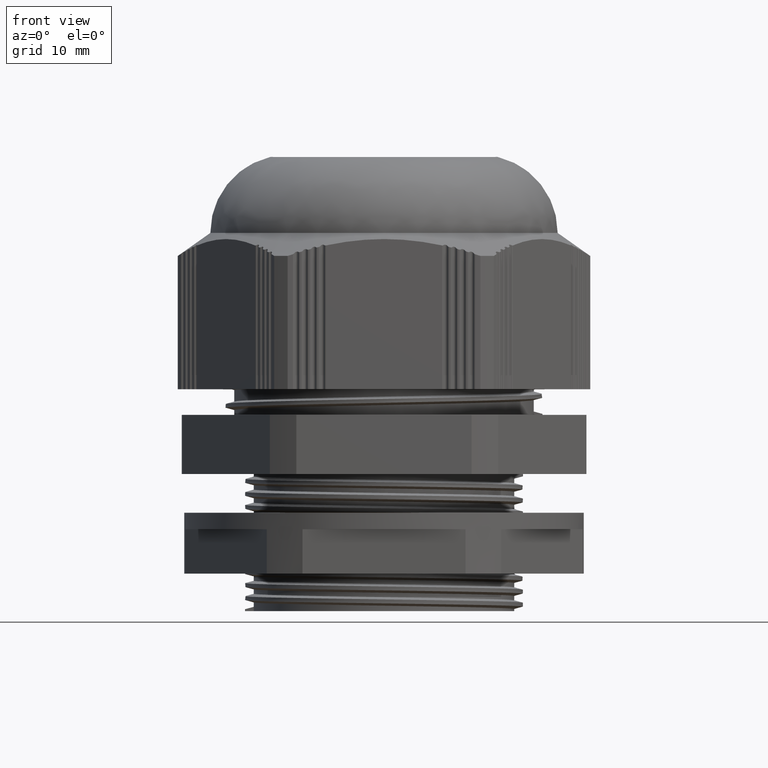
[diagram: clean part render]
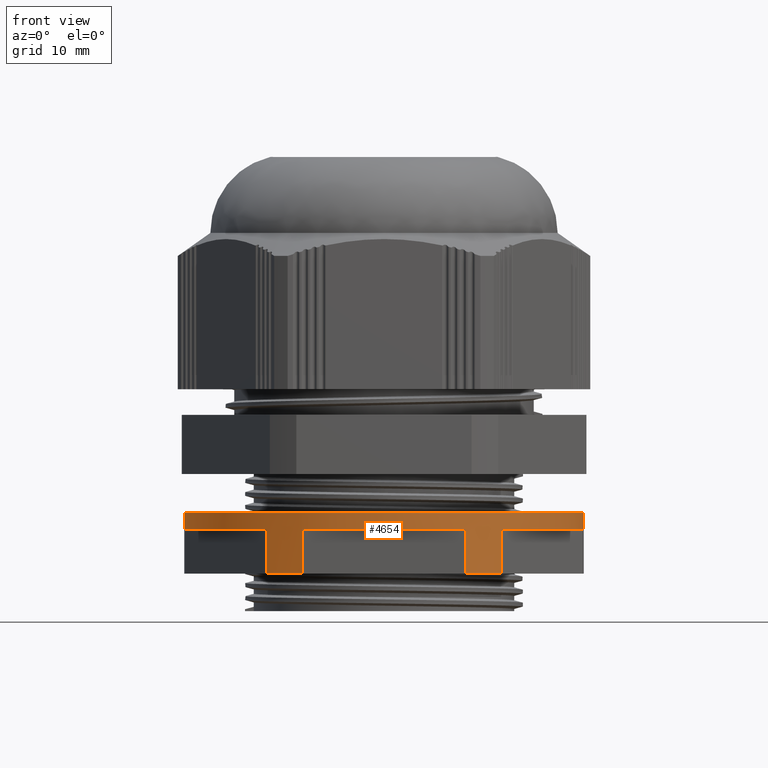
[diagram: same view with one face highlighted and labeled with its STEP entity id]
A machine part, front view. The second image highlights one B-rep face of the part: STEP entity #4654.
In plain terms, the highlighted cylindrical surface (partial cylindrical patch) has radius 23 mm, axis along (0, 0, 1).
Its self-contained STEP definition (entity closure, byte-faithful):
#64 = ORIENTED_EDGE ( 'NONE', *, *, #4732, .F. ) ;
#68 = ORIENTED_EDGE ( 'NONE', *, *, #356, .T. ) ;
#70 = ORIENTED_EDGE ( 'NONE', *, *, #321, .T. ) ;
#108 = ORIENTED_EDGE ( 'NONE', *, *, #4820, .T. ) ;
#136 = ORIENTED_EDGE ( 'NONE', *, *, #4811, .F. ) ;
#156 = VERTEX_POINT ( 'NONE', #4265 ) ;
#165 = VERTEX_POINT ( 'NONE', #4330 ) ;
#321 = EDGE_CURVE ( 'NONE', #1519, #1184, #2441, .T. ) ;
#325 = VERTEX_POINT ( 'NONE', #10208 ) ;
#335 = EDGE_CURVE ( 'NONE', #165, #1202, #2428, .T. ) ;
#356 = EDGE_CURVE ( 'NONE', #1174, #1519, #3148, .T. ) ;
#405 = VERTEX_POINT ( 'NONE', #3317 ) ;
#509 = ORIENTED_EDGE ( 'NONE', *, *, #4775, .T. ) ;
#516 = ORIENTED_EDGE ( 'NONE', *, *, #4782, .T. ) ;
#518 = ORIENTED_EDGE ( 'NONE', *, *, #4798, .T. ) ;
#536 = ORIENTED_EDGE ( 'NONE', *, *, #335, .F. ) ;
#539 = ORIENTED_EDGE ( 'NONE', *, *, #4799, .T. ) ;
#540 = ORIENTED_EDGE ( 'NONE', *, *, #571, .T. ) ;
#571 = EDGE_CURVE ( 'NONE', #165, #325, #3685, .T. ) ;
#614 = EDGE_CURVE ( 'NONE', #156, #405, #3909, .T. ) ;
#855 = EDGE_LOOP ( 'NONE', ( #10157, #10204, #10171, #10212, #10225, #64, #68, #70, #108, #136, #516, #539, #509, #536, #540, #518 ) ) ;
#1174 = VERTEX_POINT ( 'NONE', #6720 ) ;
#1175 = VERTEX_POINT ( 'NONE', #6744 ) ;
#1184 = VERTEX_POINT ( 'NONE', #6705 ) ;
#1185 = VERTEX_POINT ( 'NONE', #6742 ) ;
#1202 = VERTEX_POINT ( 'NONE', #6733 ) ;
#1207 = VERTEX_POINT ( 'NONE', #6748 ) ;
#1209 = VERTEX_POINT ( 'NONE', #6736 ) ;
#1215 = VERTEX_POINT ( 'NONE', #6727 ) ;
#1231 = VERTEX_POINT ( 'NONE', #6827 ) ;
#1519 = VERTEX_POINT ( 'NONE', #6990 ) ;
#1520 = VERTEX_POINT ( 'NONE', #6981 ) ;
#1529 = VERTEX_POINT ( 'NONE', #7018 ) ;
#2428 = CIRCLE ( 'NONE', #2455, 23.00000000000000000 ) ;
#2433 = VECTOR ( 'NONE', #3154, 1000.000000000000000 ) ;
#2441 = CIRCLE ( 'NONE', #2454, 23.00000000000000000 ) ;
#2454 = AXIS2_PLACEMENT_3D ( 'NONE', #4254, #4256, #4262 ) ;
#2455 = AXIS2_PLACEMENT_3D ( 'NONE', #3138, #3163, #3166 ) ;
#2531 = VECTOR ( 'NONE', #3728, 1000.000000000000000 ) ;
#2606 = VECTOR ( 'NONE', #3917, 1000.000000000000000 ) ;
#2771 = AXIS2_PLACEMENT_3D ( 'NONE', #9079, #9069, #9101 ) ;
#2835 = AXIS2_PLACEMENT_3D ( 'NONE', #10962, #10956, #10985 ) ;
#2862 = VECTOR ( 'NONE', #11027, 1000.000000000000000 ) ;
#2869 = CIRCLE ( 'NONE', #2835, 23.00000000000000000 ) ;
#2887 = AXIS2_PLACEMENT_3D ( 'NONE', #11857, #11849, #11835 ) ;
#2894 = VECTOR ( 'NONE', #11460, 1000.000000000000000 ) ;
#2896 = CIRCLE ( 'NONE', #2918, 23.00000000000000000 ) ;
#2897 = AXIS2_PLACEMENT_3D ( 'NONE', #11820, #11833, #11852 ) ;
#2901 = CIRCLE ( 'NONE', #2902, 23.00000000000000000 ) ;
#2902 = AXIS2_PLACEMENT_3D ( 'NONE', #11892, #11894, #11888 ) ;
#2905 = VECTOR ( 'NONE', #11429, 1000.000000000000000 ) ;
#2915 = VECTOR ( 'NONE', #11443, 1000.000000000000000 ) ;
#2918 = AXIS2_PLACEMENT_3D ( 'NONE', #11865, #11866, #11883 ) ;
#2927 = CIRCLE ( 'NONE', #2897, 23.00000000000000000 ) ;
#2936 = CIRCLE ( 'NONE', #2887, 23.00000000000000000 ) ;
#2944 = AXIS2_PLACEMENT_3D ( 'NONE', #12024, #12039, #12008 ) ;
#2947 = CIRCLE ( 'NONE', #2944, 23.00000000000000000 ) ;
#2976 = VECTOR ( 'NONE', #12036, 1000.000000000000000 ) ;
#3138 = CARTESIAN_POINT ( 'NONE',  ( 0.0000000000000000000, 0.0000000000000000000, 4.324286988929948400 ) ) ;
#3148 = LINE ( 'NONE', #3159, #2433 ) ;
#3154 = DIRECTION ( 'NONE',  ( 0.0000000000000000000, 0.0000000000000000000, 1.000000000000000000 ) ) ;
#3159 = CARTESIAN_POINT ( 'NONE',  ( -9.380831519646829300, -21.00000000000001100, 4.824286988929948400 ) ) ;
#3163 = DIRECTION ( 'NONE',  ( 0.0000000000000000000, 0.0000000000000000000, -1.000000000000000000 ) ) ;
#3166 = DIRECTION ( 'NONE',  ( -1.000000000000000000, 0.0000000000000000000, 0.0000000000000000000 ) ) ;
#3317 = CARTESIAN_POINT ( 'NONE',  ( -23.00000000000000000, 2.816687638038912400E-015, 11.32428698892995400 ) ) ;
#3685 = LINE ( 'NONE', #3691, #2531 ) ;
#3691 = CARTESIAN_POINT ( 'NONE',  ( 23.00000000000000000, 0.0000000000000000000, 4.824286988929948400 ) ) ;
#3728 = DIRECTION ( 'NONE',  ( 0.0000000000000000000, 0.0000000000000000000, 1.000000000000000000 ) ) ;
#3902 = CARTESIAN_POINT ( 'NONE',  ( -23.00000000000000000, 2.816687638038912400E-015, 4.824286988929948400 ) ) ;
#3909 = LINE ( 'NONE', #3902, #2606 ) ;
#3917 = DIRECTION ( 'NONE',  ( 0.0000000000000000000, 0.0000000000000000000, 1.000000000000000000 ) ) ;
#4254 = CARTESIAN_POINT ( 'NONE',  ( 0.0000000000000000000, 0.0000000000000000000, 9.424286988929948100 ) ) ;
#4256 = DIRECTION ( 'NONE',  ( 0.0000000000000000000, 0.0000000000000000000, 1.000000000000000000 ) ) ;
#4262 = DIRECTION ( 'NONE',  ( 1.000000000000000000, 0.0000000000000000000, 0.0000000000000000000 ) ) ;
#4265 = CARTESIAN_POINT ( 'NONE',  ( -23.00000000000000000, 2.816687638038912400E-015, 4.324286988929948400 ) ) ;
#4330 = CARTESIAN_POINT ( 'NONE',  ( 23.00000000000000000, 0.0000000000000000000, 4.324286988929948400 ) ) ;
#4654 = ADVANCED_FACE ( 'NONE', ( #9097 ), #9089, .T. ) ;
#4732 = EDGE_CURVE ( 'NONE', #1174, #1207, #2869, .T. ) ;
#4737 = EDGE_CURVE ( 'NONE', #1175, #1185, #11035, .T. ) ;
#4775 = EDGE_CURVE ( 'NONE', #1215, #1202, #11407, .T. ) ;
#4778 = EDGE_CURVE ( 'NONE', #1520, #1207, #11422, .T. ) ;
#4782 = EDGE_CURVE ( 'NONE', #1231, #1529, #11463, .T. ) ;
#4798 = EDGE_CURVE ( 'NONE', #325, #405, #2927, .T. ) ;
#4799 = EDGE_CURVE ( 'NONE', #1529, #1215, #2936, .T. ) ;
#4811 = EDGE_CURVE ( 'NONE', #1231, #1209, #2901, .T. ) ;
#4814 = EDGE_CURVE ( 'NONE', #1185, #1520, #2896, .T. ) ;
#4820 = EDGE_CURVE ( 'NONE', #1184, #1209, #12056, .T. ) ;
#4826 = EDGE_CURVE ( 'NONE', #1175, #156, #2947, .T. ) ;
#6705 = CARTESIAN_POINT ( 'NONE',  ( 9.380831519646816800, -21.00000000000001800, 9.424286988929948100 ) ) ;
#6720 = CARTESIAN_POINT ( 'NONE',  ( -9.380831519646829300, -21.00000000000001100, 4.324286988929948400 ) ) ;
#6727 = CARTESIAN_POINT ( 'NONE',  ( 22.87694923929664300, -2.375961595364028100, 9.424286988929948100 ) ) ;
#6733 = CARTESIAN_POINT ( 'NONE',  ( 22.87694923929664300, -2.375961595364028100, 4.324286988929948400 ) ) ;
#6736 = CARTESIAN_POINT ( 'NONE',  ( 9.380831519646816800, -21.00000000000001800, 4.324286988929948400 ) ) ;
#6742 = CARTESIAN_POINT ( 'NONE',  ( -22.87694923929663900, -2.375961595364050700, 9.424286988929948100 ) ) ;
#6744 = CARTESIAN_POINT ( 'NONE',  ( -22.87694923929663900, -2.375961595364050700, 4.324286988929948400 ) ) ;
#6748 = CARTESIAN_POINT ( 'NONE',  ( -13.49611771964979400, -18.62403840463595400, 4.324286988929948400 ) ) ;
#6827 = CARTESIAN_POINT ( 'NONE',  ( 13.49611771964979600, -18.62403840463595000, 4.324286988929948400 ) ) ;
#6981 = CARTESIAN_POINT ( 'NONE',  ( -13.49611771964979400, -18.62403840463595400, 9.424286988929948100 ) ) ;
#6990 = CARTESIAN_POINT ( 'NONE',  ( -9.380831519646829300, -21.00000000000001100, 9.424286988929948100 ) ) ;
#7018 = CARTESIAN_POINT ( 'NONE',  ( 13.49611771964979600, -18.62403840463595000, 9.424286988929948100 ) ) ;
#9069 = DIRECTION ( 'NONE',  ( 0.0000000000000000000, 0.0000000000000000000, 1.000000000000000000 ) ) ;
#9079 = CARTESIAN_POINT ( 'NONE',  ( 0.0000000000000000000, 0.0000000000000000000, 4.824286988929948400 ) ) ;
#9089 = CYLINDRICAL_SURFACE ( 'NONE', #2771, 23.00000000000000000 ) ;
#9097 = FACE_OUTER_BOUND ( 'NONE', #855, .T. ) ;
#9101 = DIRECTION ( 'NONE',  ( 1.000000000000000000, 0.0000000000000000000, 0.0000000000000000000 ) ) ;
#10157 = ORIENTED_EDGE ( 'NONE', *, *, #614, .F. ) ;
#10171 = ORIENTED_EDGE ( 'NONE', *, *, #4737, .T. ) ;
#10204 = ORIENTED_EDGE ( 'NONE', *, *, #4826, .F. ) ;
#10208 = CARTESIAN_POINT ( 'NONE',  ( 23.00000000000000000, 0.0000000000000000000, 11.32428698892995400 ) ) ;
#10212 = ORIENTED_EDGE ( 'NONE', *, *, #4814, .T. ) ;
#10225 = ORIENTED_EDGE ( 'NONE', *, *, #4778, .T. ) ;
#10956 = DIRECTION ( 'NONE',  ( 0.0000000000000000000, 0.0000000000000000000, -1.000000000000000000 ) ) ;
#10962 = CARTESIAN_POINT ( 'NONE',  ( 0.0000000000000000000, 0.0000000000000000000, 4.324286988929948400 ) ) ;
#10985 = DIRECTION ( 'NONE',  ( -1.000000000000000000, 0.0000000000000000000, 0.0000000000000000000 ) ) ;
#11024 = CARTESIAN_POINT ( 'NONE',  ( -22.87694923929663900, -2.375961595364050700, 4.824286988929948400 ) ) ;
#11027 = DIRECTION ( 'NONE',  ( 0.0000000000000000000, 0.0000000000000000000, 1.000000000000000000 ) ) ;
#11035 = LINE ( 'NONE', #11024, #2862 ) ;
#11407 = LINE ( 'NONE', #11442, #2915 ) ;
#11418 = CARTESIAN_POINT ( 'NONE',  ( -13.49611771964979400, -18.62403840463595400, 4.824286988929948400 ) ) ;
#11422 = LINE ( 'NONE', #11418, #2905 ) ;
#11429 = DIRECTION ( 'NONE',  ( -0.0000000000000000000, -0.0000000000000000000, -1.000000000000000000 ) ) ;
#11442 = CARTESIAN_POINT ( 'NONE',  ( 22.87694923929664300, -2.375961595364028100, 4.824286988929948400 ) ) ;
#11443 = DIRECTION ( 'NONE',  ( -0.0000000000000000000, -0.0000000000000000000, -1.000000000000000000 ) ) ;
#11460 = DIRECTION ( 'NONE',  ( 0.0000000000000000000, 0.0000000000000000000, 1.000000000000000000 ) ) ;
#11463 = LINE ( 'NONE', #11482, #2894 ) ;
#11482 = CARTESIAN_POINT ( 'NONE',  ( 13.49611771964979600, -18.62403840463595000, 4.824286988929948400 ) ) ;
#11820 = CARTESIAN_POINT ( 'NONE',  ( 0.0000000000000000000, 0.0000000000000000000, 11.32428698892995400 ) ) ;
#11833 = DIRECTION ( 'NONE',  ( -0.0000000000000000000, -0.0000000000000000000, -1.000000000000000000 ) ) ;
#11835 = DIRECTION ( 'NONE',  ( 1.000000000000000000, 0.0000000000000000000, 0.0000000000000000000 ) ) ;
#11849 = DIRECTION ( 'NONE',  ( 0.0000000000000000000, 0.0000000000000000000, 1.000000000000000000 ) ) ;
#11852 = DIRECTION ( 'NONE',  ( 1.000000000000000000, 0.0000000000000000000, 0.0000000000000000000 ) ) ;
#11857 = CARTESIAN_POINT ( 'NONE',  ( 0.0000000000000000000, 0.0000000000000000000, 9.424286988929948100 ) ) ;
#11865 = CARTESIAN_POINT ( 'NONE',  ( 0.0000000000000000000, 0.0000000000000000000, 9.424286988929948100 ) ) ;
#11866 = DIRECTION ( 'NONE',  ( 0.0000000000000000000, 0.0000000000000000000, 1.000000000000000000 ) ) ;
#11883 = DIRECTION ( 'NONE',  ( 1.000000000000000000, 0.0000000000000000000, 0.0000000000000000000 ) ) ;
#11888 = DIRECTION ( 'NONE',  ( -1.000000000000000000, 0.0000000000000000000, 0.0000000000000000000 ) ) ;
#11892 = CARTESIAN_POINT ( 'NONE',  ( 0.0000000000000000000, 0.0000000000000000000, 4.324286988929948400 ) ) ;
#11894 = DIRECTION ( 'NONE',  ( 0.0000000000000000000, 0.0000000000000000000, -1.000000000000000000 ) ) ;
#12008 = DIRECTION ( 'NONE',  ( -1.000000000000000000, 0.0000000000000000000, 0.0000000000000000000 ) ) ;
#12024 = CARTESIAN_POINT ( 'NONE',  ( 0.0000000000000000000, 0.0000000000000000000, 4.324286988929948400 ) ) ;
#12036 = DIRECTION ( 'NONE',  ( -0.0000000000000000000, -0.0000000000000000000, -1.000000000000000000 ) ) ;
#12037 = CARTESIAN_POINT ( 'NONE',  ( 9.380831519646816800, -21.00000000000001800, 4.824286988929948400 ) ) ;
#12039 = DIRECTION ( 'NONE',  ( 0.0000000000000000000, 0.0000000000000000000, -1.000000000000000000 ) ) ;
#12056 = LINE ( 'NONE', #12037, #2976 ) ;